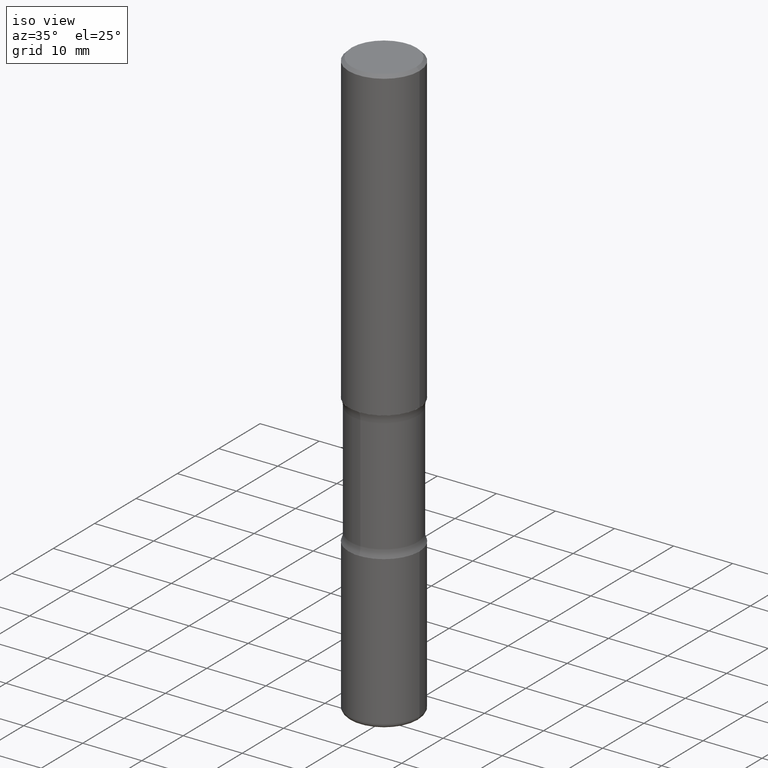
[diagram: clean part render]
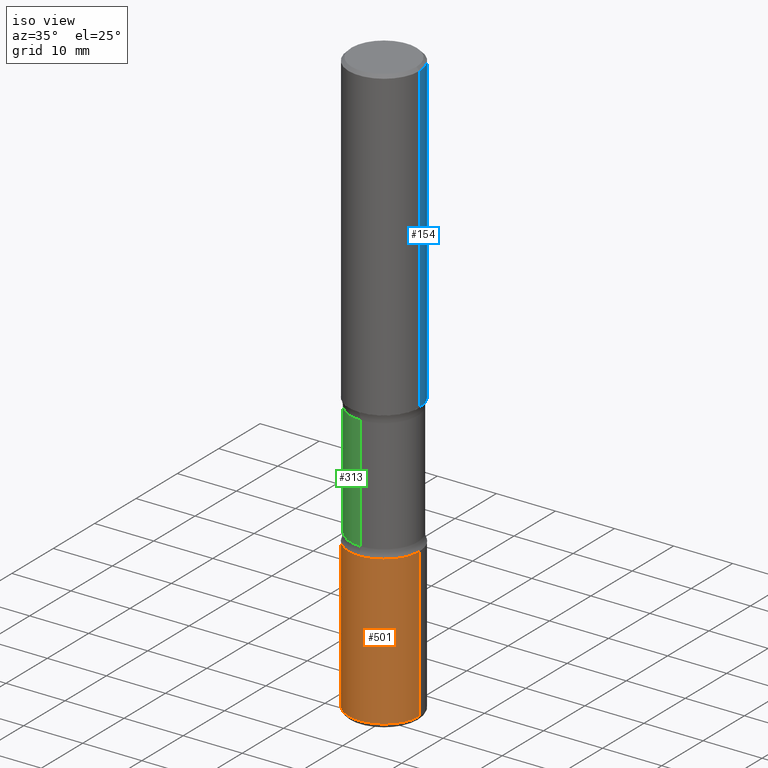
[diagram: same view with three faces highlighted in distinct colors, each labeled with its STEP entity id]
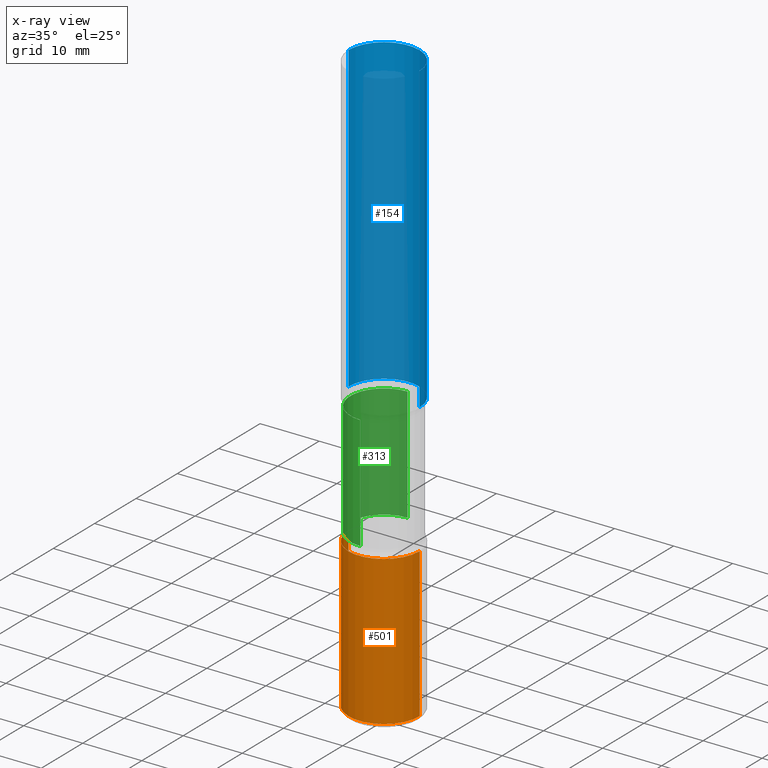
[diagram: x-ray of the same camera — body ghosted, the three highlighted faces saturated]
A machine part, iso view with three faces highlighted in distinct colors.
The next image is the same camera in x-ray (body ghosted, the three faces saturated) — at least one of them is partly hidden behind the body in this view.
Their STEP definitions:

[orange] entity #501 — the highlighted cylindrical surface (partial cylindrical patch) has radius 5.9995 mm, axis along (-0, 0, 1).
#20 = ORIENTED_EDGE ( 'NONE', *, *, #526, .F. ) ;
#24 = DIRECTION ( 'NONE',  ( -2.445468806185136877E-29, 3.491481338843145188E-15, 1.000000000000000000 ) ) ;
#31 = LINE ( 'NONE', #61, #199 ) ;
#61 = CARTESIAN_POINT ( 'NONE',  ( 0.2362000000000002153, -1.649375784469497708E-15, 1.151752954443001069E-29 ) ) ;
#96 = CARTESIAN_POINT ( 'NONE',  ( -0.2362000000000000766, -1.196291564899481365E-14, -3.907000000000000028 ) ) ;
#107 = DIRECTION ( 'NONE',  ( -2.445468806185136597E-29, 3.491481338843145583E-15, 1.000000000000000000 ) ) ;
#112 = CARTESIAN_POINT ( 'NONE',  ( 0.2362000000000000766, -1.529059337532966657E-14, -3.907000000000000028 ) ) ;
#148 = EDGE_CURVE ( 'NONE', #164, #494, #31, .T. ) ;
#152 = CYLINDRICAL_SURFACE ( 'NONE', #374, 0.2362000000000002153 ) ;
#158 = CARTESIAN_POINT ( 'NONE',  ( -0.2362000000000001321, -1.022834771985753829E-14, -2.913400000000000212 ) ) ;
#164 = VERTEX_POINT ( 'NONE', #112 ) ;
#172 = AXIS2_PLACEMENT_3D ( 'NONE', #500, #107, #459 ) ;
#177 = EDGE_CURVE ( 'NONE', #560, #555, #302, .T. ) ;
#195 = CARTESIAN_POINT ( 'NONE',  ( 9.554446625765329033E-29, -1.364121759086017004E-14, -3.907000000000000028 ) ) ;
#199 = VECTOR ( 'NONE', #24, 39.37007874015748143 ) ;
#213 = VECTOR ( 'NONE', #368, 39.37007874015748143 ) ;
#223 = ORIENTED_EDGE ( 'NONE', *, *, #148, .T. ) ;
#236 = DIRECTION ( 'NONE',  ( -2.445468806185136597E-29, 3.491481338843145583E-15, 1.000000000000000000 ) ) ;
#241 = CARTESIAN_POINT ( 'NONE',  ( 0.000000000000000000, 0.000000000000000000, 0.000000000000000000 ) ) ;
#252 = EDGE_LOOP ( 'NONE', ( #385, #469, #223, #20 ) ) ;
#292 = AXIS2_PLACEMENT_3D ( 'NONE', #195, #473, #546 ) ;
#300 = CIRCLE ( 'NONE', #292, 0.2362000000000002431 ) ;
#302 = LINE ( 'NONE', #361, #213 ) ;
#344 = CIRCLE ( 'NONE', #172, 0.2362000000000001321 ) ;
#361 = CARTESIAN_POINT ( 'NONE',  ( -0.2362000000000002153, 1.678301941865358169E-15, -1.161852468318209878E-29 ) ) ;
#368 = DIRECTION ( 'NONE',  ( -2.445468806185136877E-29, 3.491481338843145188E-15, 1.000000000000000000 ) ) ;
#374 = AXIS2_PLACEMENT_3D ( 'NONE', #241, #236, #415 ) ;
#385 = ORIENTED_EDGE ( 'NONE', *, *, #177, .F. ) ;
#415 = DIRECTION ( 'NONE',  ( 1.000000000000000000, -6.982962677686266711E-15, 4.876176775795935793E-29 ) ) ;
#459 = DIRECTION ( 'NONE',  ( 1.000000000000000000, -6.982962677686269077E-15, 0.000000000000000000 ) ) ;
#462 = EDGE_CURVE ( 'NONE', #560, #164, #300, .T. ) ;
#468 = FACE_OUTER_BOUND ( 'NONE', #252, .T. ) ;
#469 = ORIENTED_EDGE ( 'NONE', *, *, #462, .T. ) ;
#473 = DIRECTION ( 'NONE',  ( -2.445468806185136597E-29, 3.491481338843145583E-15, 1.000000000000000000 ) ) ;
#494 = VERTEX_POINT ( 'NONE', #537 ) ;
#500 = CARTESIAN_POINT ( 'NONE',  ( 7.124628819939777829E-29, -1.017208173258562247E-14, -2.913400000000000212 ) ) ;
#501 = ADVANCED_FACE ( 'NONE', ( #468 ), #152, .T. ) ;
#526 = EDGE_CURVE ( 'NONE', #555, #494, #344, .T. ) ;
#537 = CARTESIAN_POINT ( 'NONE',  ( 0.2362000000000001321, -1.182145751705511899E-14, -2.913400000000000212 ) ) ;
#546 = DIRECTION ( 'NONE',  ( 1.000000000000000000, -6.982962677686265922E-15, 0.000000000000000000 ) ) ;
#555 = VERTEX_POINT ( 'NONE', #158 ) ;
#560 = VERTEX_POINT ( 'NONE', #96 ) ;

[blue] entity #154 — the highlighted cylindrical surface (partial cylindrical patch) has radius 5.9995 mm, axis along (-0, 0, 1).
#1 = ORIENTED_EDGE ( 'NONE', *, *, #227, .F. ) ;
#2 = ORIENTED_EDGE ( 'NONE', *, *, #40, .T. ) ;
#6 = CARTESIAN_POINT ( 'NONE',  ( -0.2361999999999999933, 1.678301941865356591E-15, -1.161852468318208757E-29 ) ) ;
#10 = VERTEX_POINT ( 'NONE', #262 ) ;
#13 = CARTESIAN_POINT ( 'NONE',  ( 0.2361999999999999933, -1.649375784469496131E-15, 1.151752954443000088E-29 ) ) ;
#33 = VERTEX_POINT ( 'NONE', #216 ) ;
#40 = EDGE_CURVE ( 'NONE', #170, #33, #536, .T. ) ;
#41 = VECTOR ( 'NONE', #281, 39.37007874015748143 ) ;
#53 = ORIENTED_EDGE ( 'NONE', *, *, #474, .F. ) ;
#70 = CARTESIAN_POINT ( 'NONE',  ( -0.2362000000000001598, -1.930493169962915017E-15, -2.047200000000000131 ) ) ;
#88 = LINE ( 'NONE', #13, #41 ) ;
#92 = CIRCLE ( 'NONE', #381, 0.2362000000000001321 ) ;
#126 = EDGE_LOOP ( 'NONE', ( #295, #2, #53, #1 ) ) ;
#150 = DIRECTION ( 'NONE',  ( -2.445468806185136597E-29, 3.491481338843145583E-15, 1.000000000000000000 ) ) ;
#154 = ADVANCED_FACE ( 'NONE', ( #466 ), #457, .T. ) ;
#170 = VERTEX_POINT ( 'NONE', #70 ) ;
#176 = DIRECTION ( 'NONE',  ( -2.445468806185136877E-29, 3.491481338843145188E-15, 1.000000000000000000 ) ) ;
#189 = AXIS2_PLACEMENT_3D ( 'NONE', #465, #150, #328 ) ;
#194 = EDGE_CURVE ( 'NONE', #496, #170, #92, .T. ) ;
#205 = AXIS2_PLACEMENT_3D ( 'NONE', #502, #417, #243 ) ;
#216 = CARTESIAN_POINT ( 'NONE',  ( -0.2361999999999998823, 1.579546157692632438E-15, -0.02000000000000006981 ) ) ;
#227 = EDGE_CURVE ( 'NONE', #496, #10, #88, .T. ) ;
#243 = DIRECTION ( 'NONE',  ( 1.000000000000000000, -6.982962677686267499E-15, 0.000000000000000000 ) ) ;
#262 = CARTESIAN_POINT ( 'NONE',  ( 0.2361999999999998823, -1.690279253850498179E-15, -0.02000000000000006981 ) ) ;
#281 = DIRECTION ( 'NONE',  ( -2.445468806185136877E-29, 3.491481338843145188E-15, 1.000000000000000000 ) ) ;
#286 = CARTESIAN_POINT ( 'NONE',  ( 0.2362000000000001321, -8.797136381349186305E-15, -2.047200000000000131 ) ) ;
#295 = ORIENTED_EDGE ( 'NONE', *, *, #194, .T. ) ;
#328 = DIRECTION ( 'NONE',  ( 1.000000000000000000, -6.982962677686266711E-15, 4.876176775795936353E-29 ) ) ;
#332 = DIRECTION ( 'NONE',  ( 1.000000000000000000, -6.982962677686269077E-15, 0.000000000000000000 ) ) ;
#376 = CARTESIAN_POINT ( 'NONE',  ( 5.006363740022212241E-29, -7.147760596879688202E-15, -2.047200000000000131 ) ) ;
#381 = AXIS2_PLACEMENT_3D ( 'NONE', #376, #553, #332 ) ;
#417 = DIRECTION ( 'NONE',  ( -2.445468806185136597E-29, 3.491481338843145583E-15, 1.000000000000000000 ) ) ;
#439 = VECTOR ( 'NONE', #176, 39.37007874015748143 ) ;
#457 = CYLINDRICAL_SURFACE ( 'NONE', #189, 0.2361999999999999933 ) ;
#461 = CIRCLE ( 'NONE', #205, 0.2361999999999998823 ) ;
#465 = CARTESIAN_POINT ( 'NONE',  ( 0.000000000000000000, 0.000000000000000000, 0.000000000000000000 ) ) ;
#466 = FACE_OUTER_BOUND ( 'NONE', #126, .T. ) ;
#474 = EDGE_CURVE ( 'NONE', #10, #33, #461, .T. ) ;
#496 = VERTEX_POINT ( 'NONE', #286 ) ;
#502 = CARTESIAN_POINT ( 'NONE',  ( 4.890937612370289799E-31, -6.982962677686315028E-17, -0.02000000000000006981 ) ) ;
#536 = LINE ( 'NONE', #6, #439 ) ;
#553 = DIRECTION ( 'NONE',  ( -2.445468806185136597E-29, 3.491481338843145583E-15, 1.000000000000000000 ) ) ;

[green] entity #313 — the highlighted cylindrical surface (partial cylindrical patch) has radius 5.6998 mm, axis along (0, -0, -1).
#7 = CARTESIAN_POINT ( 'NONE',  ( 1.566976824872894642E-15, 0.2243999999999863049, -3.937000000000000721 ) ) ;
#11 = CARTESIAN_POINT ( 'NONE',  ( 1.566976824872867821E-15, 0.2243999999999899686, -2.860383398826405799 ) ) ;
#49 = DIRECTION ( 'NONE',  ( 2.525985086076564115E-29, -3.376177443336566513E-15, -1.000000000000000000 ) ) ;
#50 = ORIENTED_EDGE ( 'NONE', *, *, #550, .T. ) ;
#56 = CARTESIAN_POINT ( 'NONE',  ( -1.579972688886713168E-15, -0.2244000000000099804, -2.860383398826404466 ) ) ;
#83 = EDGE_LOOP ( 'NONE', ( #301, #50, #533, #272 ) ) ;
#101 = DIRECTION ( 'NONE',  ( 2.525985086076564115E-29, -3.376177443336566513E-15, -1.000000000000000000 ) ) ;
#127 = DIRECTION ( 'NONE',  ( 2.525985086076564115E-29, -3.376177443336566513E-15, -1.000000000000000000 ) ) ;
#196 = DIRECTION ( 'NONE',  ( 6.982962677686265922E-15, 1.000000000000000000, -2.434802133390609421E-15 ) ) ;
#210 = VERTEX_POINT ( 'NONE', #475 ) ;
#211 = DIRECTION ( 'NONE',  ( 6.982962677686265922E-15, 1.000000000000000000, -2.434802133390609815E-15 ) ) ;
#225 = VERTEX_POINT ( 'NONE', #259 ) ;
#244 = AXIS2_PLACEMENT_3D ( 'NONE', #495, #101, #196 ) ;
#253 = LINE ( 'NONE', #432, #514 ) ;
#259 = CARTESIAN_POINT ( 'NONE',  ( 1.566976824872848494E-15, 0.2243999999999925499, -2.100216601173596320 ) ) ;
#271 = VERTEX_POINT ( 'NONE', #56 ) ;
#272 = ORIENTED_EDGE ( 'NONE', *, *, #287, .F. ) ;
#287 = EDGE_CURVE ( 'NONE', #271, #447, #482, .T. ) ;
#301 = ORIENTED_EDGE ( 'NONE', *, *, #345, .F. ) ;
#313 = ADVANCED_FACE ( 'NONE', ( #390 ), #436, .T. ) ;
#324 = DIRECTION ( 'NONE',  ( 6.982962677686265922E-15, 1.000000000000000000, -3.652203200085913934E-15 ) ) ;
#345 = EDGE_CURVE ( 'NONE', #210, #271, #253, .T. ) ;
#349 = DIRECTION ( 'NONE',  ( 2.525985086076564115E-29, -3.376177443336566513E-15, -1.000000000000000000 ) ) ;
#367 = CARTESIAN_POINT ( 'NONE',  ( 5.070539682259229331E-29, -7.426630284172150130E-15, -2.100216601173595432 ) ) ;
#390 = FACE_OUTER_BOUND ( 'NONE', #83, .T. ) ;
#394 = AXIS2_PLACEMENT_3D ( 'NONE', #440, #49, #211 ) ;
#396 = LINE ( 'NONE', #7, #411 ) ;
#411 = VECTOR ( 'NONE', #349, 39.37007874015748143 ) ;
#416 = EDGE_CURVE ( 'NONE', #225, #447, #396, .T. ) ;
#432 = CARTESIAN_POINT ( 'NONE',  ( -1.539495750699834052E-15, -0.2244000000000135608, -3.936999999999999389 ) ) ;
#436 = CYLINDRICAL_SURFACE ( 'NONE', #394, 0.2243999999999999329 ) ;
#440 = CARTESIAN_POINT ( 'NONE',  ( 9.710227154047748282E-29, -1.362793696358492956E-14, -3.937000000000000277 ) ) ;
#447 = VERTEX_POINT ( 'NONE', #11 ) ;
#472 = AXIS2_PLACEMENT_3D ( 'NONE', #367, #544, #324 ) ;
#475 = CARTESIAN_POINT ( 'NONE',  ( -1.579972688886734072E-15, -0.2244000000000073713, -2.100216601173594544 ) ) ;
#482 = CIRCLE ( 'NONE', #244, 0.2243999999999999606 ) ;
#495 = CARTESIAN_POINT ( 'NONE',  ( 6.990709676060807691E-29, -9.993088279580958225E-15, -2.860383398826405354 ) ) ;
#514 = VECTOR ( 'NONE', #127, 39.37007874015748143 ) ;
#516 = CIRCLE ( 'NONE', #472, 0.2243999999999999606 ) ;
#533 = ORIENTED_EDGE ( 'NONE', *, *, #416, .T. ) ;
#544 = DIRECTION ( 'NONE',  ( 2.525985086076564115E-29, -3.376177443336566513E-15, -1.000000000000000000 ) ) ;
#550 = EDGE_CURVE ( 'NONE', #210, #225, #516, .T. ) ;